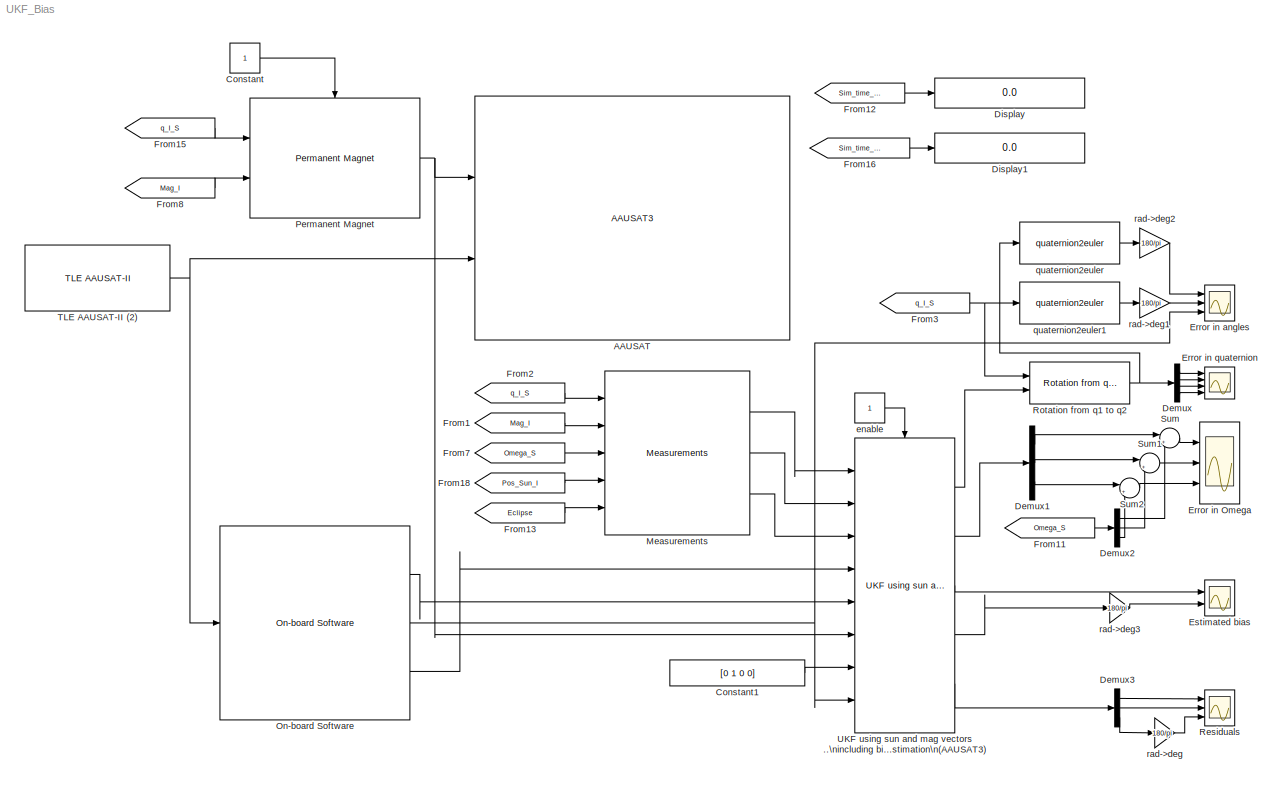
MODEL UKF_Bias
KIND model
BLOCK [Reference] AAUSAT  REF=aausat3_lib/AAUSAT3  (lib defined in mdl_4157f6465749, slx_d9305f96731e)
  Cd = 2
  Dim = [0.1,0.1,0.11]
  FunctionWithSeparateData = off
  Ports = [2]
  RTWMemSecDataConstants = Inherit from model
  RTWMemSecDataInternal = Inherit from model
  RTWMemSecDataParameters = Inherit from model
  RTWMemSecFuncExecute = Inherit from model
  RTWMemSecFuncInitTerm = Inherit from model
  SID = 875
  ShowPortLabels = none
  SourceBlock = aausat3_lib/AAUSAT3
  SystemSampleTime = -1
  Ts = 1
  enable_env_disturbance = on
  enable_sensor_emulation = on
  inertia_c = [0.0017466,0.0020972,0.0021268]
  init_jd = 2455153.1954318+0.035
  mass_sc = 0.957820
  q_init_I_S = [0 0 0 1]
  q_s_c = [-0.018775,0.71389,-0.0072618,0.69997]
  r_com_s = [0.049073,0.048909,0.041691]
  redfac = 1
  refldata = load('lib/AlbedoToolbox-1.0/refl_data/2005/ga050101-051231')
  rho = 5e-14
  sat_temp_start = 293.15
  solar_absorb_coeff = 1.5
  solar_m_flux = 4.5565e-6
  theta_e = 65
  w_init_s = [0.02,0.02,0.02]
BLOCK [Constant] Constant
  OutDataType = fixdt(1, 16)
  OutScaling = 2^0
  SID = 116
BLOCK [Constant] Constant1
  OutDataType = fixdt(1, 16)
  OutScaling = 2^0
  SID = 167
  Value = [0 1 0 0]
BLOCK [Demux] Demux
  DisplayOption = bar
  Ports = [1, 4]
  SID = 378
BLOCK [Demux] Demux1
  DisplayOption = bar
  Outputs = 3
  Ports = [1, 3]
  SID = 381
BLOCK [Demux] Demux2
  DisplayOption = bar
  Outputs = 3
  Ports = [1, 3]
  SID = 382
BLOCK [Demux] Demux3
  DisplayOption = bar
  Outputs = 3
  Ports = [1, 3]
  SID = 868
BLOCK [Display] Display
  Decimation = 1
  Format = long
  Lockdown = off
  Ports = [1]
  SID = 390
BLOCK [Display] Display1
  Decimation = 1
  Format = long
  Lockdown = off
  Ports = [1]
  SID = 415
BLOCK [Scope] Error in Omega
  DataFormat = StructureWithTime
  Floating = off
  LimitDataPoints = off
  NumInputPorts = 3
  Ports = [3]
  SID = 385
  SampleInput = on
  SampleTime = 1
  SaveName = ScopeData1
  TimeRange = 2000
  YMax = 0.0025~0.0045~0.003
  YMin = -0.004~-0.005~-0.0035
BLOCK [Scope] Error in angles
  DataFormat = StructureWithTime
  Floating = off
  LimitDataPoints = off
  NumInputPorts = 3
  Ports = [3]
  SID = 387
  SampleInput = on
  SampleTime = 1
  SaveName = ScopeData2
  TimeRange = 6000
  YMax = 12.5~200~1
  YMin = -7.5~-200~-1
BLOCK [Scope] Error in quaternion
  DataFormat = StructureWithTime
  Floating = off
  LimitDataPoints = off
  NumInputPorts = 4
  Ports = [4]
  SID = 377
  SampleInput = on
  SampleTime = 1
  TimeRange = 250
  YMax = 0.03~0.01~0.02~1.0001
  YMin = -0.02~-0.0175~-0.02~0.9995
  ZoomMode = yonly
BLOCK [Scope] Estimated bias
  DataFormat = StructureWithTime
  Floating = off
  LimitDataPoints = off
  NumInputPorts = 2
  Ports = [2]
  SID = 866
  SampleInput = on
  SampleTime = 1
  SaveName = ScopeData3
  TimeRange = 6000
  YMax = 5500~2.25
  YMin = -1500~-0.5
BLOCK [From] From1
  CloseFcn = tagdialog Close
  GotoTag = Mag_I
  SID = 120
  TagVisibility = global
BLOCK [From] From11
  CloseFcn = tagdialog Close
  GotoTag = Omega_S
  SID = 379
  TagVisibility = global
BLOCK [From] From12
  CloseFcn = tagdialog Close
  GotoTag = Sim_time_JD
  SID = 389
  TagVisibility = global
BLOCK [From] From13
  CloseFcn = tagdialog Close
  GotoTag = Eclipse
  SID = 399
  TagVisibility = global
BLOCK [From] From15
  CloseFcn = tagdialog Close
  GotoTag = q_I_S
  SID = 115
  TagVisibility = global
BLOCK [From] From16
  CloseFcn = tagdialog Close
  GotoTag = Sim_time_JD_sat
  SID = 416
  TagVisibility = global
BLOCK [From] From18
  CloseFcn = tagdialog Close
  GotoTag = Pos_Sun_I
  SID = 121
  TagVisibility = global
BLOCK [From] From2
  CloseFcn = tagdialog Close
  GotoTag = q_I_S
  SID = 123
  TagVisibility = global
BLOCK [From] From3
  CloseFcn = tagdialog Close
  GotoTag = q_I_S
  SID = 164
  TagVisibility = global
BLOCK [From] From7
  CloseFcn = tagdialog Close
  GotoTag = Omega_S
  SID = 122
  TagVisibility = global
BLOCK [From] From8
  CloseFcn = tagdialog Close
  GotoTag = Mag_I
  SID = 114
  TagVisibility = global
BLOCK [Reference] Measurements  REF=aausat3_lib/Sensor Emulation/Measurements  (lib defined in mdl_4157f6465749, slx_d9305f96731e)
  FunctionWithSeparateData = off
  Ports = [5, 3]
  RTWMemSecDataConstants = Inherit from model
  RTWMemSecDataInternal = Inherit from model
  RTWMemSecDataParameters = Inherit from model
  RTWMemSecFuncExecute = Inherit from model
  RTWMemSecFuncInitTerm = Inherit from model
  SID = 874
  ShowPortLabels = FromPortIcon
  SourceBlock = aausat3_lib/Sensor Emulation/Measurements
  SystemSampleTime = -1
  bias_gyro = [-0.2 -0.2 -0.2]
  bias_mag = [2000 4000 0]
  bias_sun = [0 0]
  heading_gyro = 1
  heading_mag = 1
  noise_gyro = 0.2
  noise_mag = 3
  noise_sun = 3.33
  nr_sample_sun = 1
  s_freq_gyro = 1
  s_freq_mag = 1
  s_freq_sun = 1
  tilt_gyro = 1
  tilt_mag = 1
BLOCK [Reference] On-board Software  REF=aausat3_lib/On-board Software  (lib defined in mdl_4157f6465749, slx_d9305f96731e)
  FunctionWithSeparateData = off
  Ports = [1, 3]
  RTWMemSecDataConstants = Inherit from model
  RTWMemSecDataInternal = Inherit from model
  RTWMemSecDataParameters = Inherit from model
  RTWMemSecFuncExecute = Inherit from model
  RTWMemSecFuncInitTerm = Inherit from model
  SID = 873
  ShowPortLabels = none
  SourceBlock = aausat3_lib/On-board Software
  SystemSampleTime = -1
  Ts = 1
  igrf_order = 8
  init_jd = 2455153.1954318+0.035
  theta_e = 65
BLOCK [Reference] Permanent Magnet  REF=aausat3_lib/Actuator Emulation/Permanent Magnet  (lib defined in mdl_4157f6465749, slx_d9305f96731e)
  FunctionWithSeparateData = off
  Ports = [2, 1, 1]
  RTWMemSecDataConstants = Inherit from model
  RTWMemSecDataInternal = Inherit from model
  RTWMemSecDataParameters = Inherit from model
  RTWMemSecFuncExecute = Inherit from model
  RTWMemSecFuncInitTerm = Inherit from model
  SID = 109
  ShowPortLabels = FromPortIcon
  SourceBlock = aausat3_lib/Actuator Emulation/Permanent Magnet
  SystemSampleTime = -1
  mag_moment = 0.0030
BLOCK [Scope] Residuals
  DataFormat = StructureWithTime
  Floating = off
  LimitDataPoints = off
  NumInputPorts = 3
  Ports = [3]
  SID = 867
  SampleInput = on
  SampleTime = 1
  SaveName = ScopeData4
  TimeRange = 6000
  YMax = 0.15~0.1~0.8
  YMin = -0.15~-0.15~-0.6
BLOCK [Reference] Rotation from q1 to q2  REF=aausat3_lib/Math Utilities/Quaternion operations/Rotation from q1 to q2  (lib defined in mdl_4157f6465749, slx_d9305f96731e)
  FunctionWithSeparateData = off
  Ports = [2, 1]
  RTWMemSecDataConstants = Inherit from model
  RTWMemSecDataInternal = Inherit from model
  RTWMemSecDataParameters = Inherit from model
  RTWMemSecFuncExecute = Inherit from model
  RTWMemSecFuncInitTerm = Inherit from model
  SID = 376
  ShowPortLabels = FromPortIcon
  SourceBlock = aausat3_lib/Math Utilities/Quaternion operations/Rotation from q1 to q2
  SourceType = SubSystem
  SystemSampleTime = -1
BLOCK [Sum] Sum
  IconShape = round
  InputSameDT = off
  Inputs = |+-
  OutDataType = fixdt(1, 16)
  OutDataTypeMode = Inherit via internal rule
  OutDataTypeStr = Inherit: Inherit via internal rule
  OutScaling = 2^0
  Ports = [2, 1]
  SID = 380
  SaturateOnIntegerOverflow = off
BLOCK [Sum] Sum1
  IconShape = round
  InputSameDT = off
  Inputs = |+-
  OutDataType = fixdt(1, 16)
  OutDataTypeMode = Inherit via internal rule
  OutDataTypeStr = Inherit: Inherit via internal rule
  OutScaling = 2^0
  Ports = [2, 1]
  SID = 383
  SaturateOnIntegerOverflow = off
BLOCK [Sum] Sum2
  IconShape = round
  InputSameDT = off
  Inputs = |+-
  OutDataType = fixdt(1, 16)
  OutDataTypeMode = Inherit via internal rule
  OutDataTypeStr = Inherit: Inherit via internal rule
  OutScaling = 2^0
  Ports = [2, 1]
  SID = 384
  SaturateOnIntegerOverflow = off
BLOCK [Reference] TLE AAUSAT-II (2)  REF=aausat3_lib/Orbit and Ephemeris/TLE AAUSAT-II  (lib defined in mdl_4157f6465749, slx_d9305f96731e)
  FunctionWithSeparateData = off
  JulianDay = 09321.69542252
  Ports = [0, 1]
  RTWMemSecDataConstants = Inherit from model
  RTWMemSecDataInternal = Inherit from model
  RTWMemSecDataParameters = Inherit from model
  RTWMemSecFuncExecute = Inherit from model
  RTWMemSecFuncInitTerm = Inherit from model
  SID = 110
  ShowPortLabels = FromPortIcon
  SourceBlock = aausat3_lib/Orbit and Ephemeris/TLE AAUSAT-II
  SystemSampleTime = -1
  bstar = .76898e-4
  eo = 0.0014245
  omegao = 254.1774
  satname = 'AAUSAT-II'
  ts = 1
  xincl = 97.9251
  xmo = 105.7862
  xndd6o = 0.0
  xndt2o = 0.00000555
  xno = 14.81823818
  xnodeo = 24.1597
BLOCK [Reference] UKF using sun and mag vectors ..\nincluding bias estimation\n(AAUSAT3)  REF=aausat3_lib/ADS/UKF using sun and mag vectors ..\nincluding bias estimation\n(AAUSAT3)  (lib defined in mdl_4157f6465749, slx_d9305f96731e)
  FunctionWithSeparateData = off
  Ports = [8, 5, 1]
  RTWMemSecDataConstants = Inherit from model
  RTWMemSecDataInternal = Inherit from model
  RTWMemSecDataParameters = Inherit from model
  RTWMemSecFuncExecute = Inherit from model
  RTWMemSecFuncInitTerm = Inherit from model
  SID = 865
  ShowPortLabels = FromPortIcon
  SourceBlock = aausat3_lib/ADS/UKF using sun and mag vectors ..\nincluding bias estimation\n(AAUSAT3)
  SystemSampleTime = -1
  f_sample = 1
BLOCK [Constant] enable
  OutDataType = fixdt(1, 16)
  OutScaling = 2^0
  SID = 876
BLOCK [Reference] quaternion2euler  REF=aausat3_lib/Math Utilities/Quaternion operations/quaternion2euler  (lib defined in mdl_4157f6465749, slx_d9305f96731e)
  FunctionWithSeparateData = off
  Ports = [1, 1]
  RTWMemSecDataConstants = Inherit from model
  RTWMemSecDataInternal = Inherit from model
  RTWMemSecDataParameters = Inherit from model
  RTWMemSecFuncExecute = Inherit from model
  RTWMemSecFuncInitTerm = Inherit from model
  SID = 386
  ShowPortLabels = FromPortIcon
  SourceBlock = aausat3_lib/Math Utilities/Quaternion operations/quaternion2euler
  SourceType = SubSystem
  SystemSampleTime = -1
BLOCK [Reference] quaternion2euler1  REF=aausat3_lib/Math Utilities/Quaternion operations/quaternion2euler  (lib defined in mdl_4157f6465749, slx_d9305f96731e)
  FunctionWithSeparateData = off
  Ports = [1, 1]
  RTWMemSecDataConstants = Inherit from model
  RTWMemSecDataInternal = Inherit from model
  RTWMemSecDataParameters = Inherit from model
  RTWMemSecFuncExecute = Inherit from model
  RTWMemSecFuncInitTerm = Inherit from model
  SID = 446
  ShowPortLabels = FromPortIcon
  SourceBlock = aausat3_lib/Math Utilities/Quaternion operations/quaternion2euler
  SourceType = SubSystem
  SystemSampleTime = -1
BLOCK [Gain] rad->deg
  Gain = 180/pi
  OutDataType = fixdt(1, 16)
  OutDataTypeMode = Inherit via internal rule
  OutDataTypeStr = Inherit: Inherit via internal rule
  OutScaling = 2^0
  ParamDataTypeStr = Inherit: Inherit via internal rule
  ParameterDataType = fixdt(1, 16)
  ParameterDataTypeMode = Inherit via internal rule
  ParameterScaling = 2^0
  SID = 869
  SaturateOnIntegerOverflow = off
BLOCK [Gain] rad->deg1
  Gain = 180/pi
  OutDataType = fixdt(1, 16)
  OutDataTypeMode = Inherit via internal rule
  OutDataTypeStr = Inherit: Inherit via internal rule
  OutScaling = 2^0
  ParamDataTypeStr = Inherit: Inherit via internal rule
  ParameterDataType = fixdt(1, 16)
  ParameterDataTypeMode = Inherit via internal rule
  ParameterScaling = 2^0
  SID = 445
  SaturateOnIntegerOverflow = off
BLOCK [Gain] rad->deg2
  Gain = 180/pi
  OutDataType = fixdt(1, 16)
  OutDataTypeMode = Inherit via internal rule
  OutDataTypeStr = Inherit: Inherit via internal rule
  OutScaling = 2^0
  ParamDataTypeStr = Inherit: Inherit via internal rule
  ParameterDataType = fixdt(1, 16)
  ParameterDataTypeMode = Inherit via internal rule
  ParameterScaling = 2^0
  SID = 398
  SaturateOnIntegerOverflow = off
BLOCK [Gain] rad->deg3
  Gain = 180/pi
  OutDataType = fixdt(1, 16)
  OutDataTypeMode = Inherit via internal rule
  OutDataTypeStr = Inherit: Inherit via internal rule
  OutScaling = 2^0
  ParamDataTypeStr = Inherit: Inherit via internal rule
  ParameterDataType = fixdt(1, 16)
  ParameterDataTypeMode = Inherit via internal rule
  ParameterScaling = 2^0
  SID = 870
  SaturateOnIntegerOverflow = off
LINE Constant1:1 -> UKF using sun and mag vectors ..\nincluding bias estimation\n(AAUSAT3):7
LINE Constant:1 -> Permanent Magnet:enable
LINE Demux1:1 -> Sum:1
LINE Demux1:2 -> Sum1:1
LINE Demux1:3 -> Sum2:1
LINE Demux2:1 -> Sum:2
LINE Demux2:2 -> Sum1:2
LINE Demux2:3 -> Sum2:2
LINE Demux3:1 -> Residuals:1
LINE Demux3:2 -> Residuals:2
LINE Demux3:3 -> rad->deg:1
LINE Demux:1 -> Error in quaternion:1
LINE Demux:2 -> Error in quaternion:2
LINE Demux:3 -> Error in quaternion:3
LINE Demux:4 -> Error in quaternion:4
LINE From11:1 -> Demux2:1
LINE From12:1 -> Display:1
LINE From13:1 -> Measurements:5
LINE From15:1 -> Permanent Magnet:1
LINE From16:1 -> Display1:1
LINE From18:1 -> Measurements:4
LINE From1:1 -> Measurements:2
LINE From2:1 -> Measurements:1
NET From3:1 -> Rotation from q1 to q2:1, quaternion2euler1:1
LINE From7:1 -> Measurements:3
LINE From8:1 -> Permanent Magnet:2
LINE Measurements:1 -> UKF using sun and mag vectors ..\nincluding bias estimation\n(AAUSAT3):1
LINE Measurements:2 -> UKF using sun and mag vectors ..\nincluding bias estimation\n(AAUSAT3):2
LINE Measurements:3 -> UKF using sun and mag vectors ..\nincluding bias estimation\n(AAUSAT3):3
LINE On-board Software:1 -> UKF using sun and mag vectors ..\nincluding bias estimation\n(AAUSAT3):5
NET On-board Software:2 -> Error in angles:3, UKF using sun and mag vectors ..\nincluding bias estimation\n(AAUSAT3):8
LINE On-board Software:3 -> UKF using sun and mag vectors ..\nincluding bias estimation\n(AAUSAT3):4
NET Permanent Magnet:1 -> AAUSAT:1, UKF using sun and mag vectors ..\nincluding bias estimation\n(AAUSAT3):6
NET Rotation from q1 to q2:1 -> Demux:1, quaternion2euler:1
LINE Sum1:1 -> Error in Omega:2
LINE Sum2:1 -> Error in Omega:3
LINE Sum:1 -> Error in Omega:1
NET TLE AAUSAT-II (2):1 -> AAUSAT:2, On-board Software:1
LINE UKF using sun and mag vectors ..\nincluding bias estimation\n(AAUSAT3):1 -> Rotation from q1 to q2:2
LINE UKF using sun and mag vectors ..\nincluding bias estimation\n(AAUSAT3):2 -> Demux1:1
LINE UKF using sun and mag vectors ..\nincluding bias estimation\n(AAUSAT3):3 -> Estimated bias:1
LINE UKF using sun and mag vectors ..\nincluding bias estimation\n(AAUSAT3):4 -> rad->deg3:1
LINE UKF using sun and mag vectors ..\nincluding bias estimation\n(AAUSAT3):5 -> Demux3:1
LINE enable:1 -> UKF using sun and mag vectors ..\nincluding bias estimation\n(AAUSAT3):enable
LINE quaternion2euler1:1 -> rad->deg1:1
LINE quaternion2euler:1 -> rad->deg2:1
LINE rad->deg1:1 -> Error in angles:2
LINE rad->deg2:1 -> Error in angles:1
LINE rad->deg3:1 -> Estimated bias:2
LINE rad->deg:1 -> Residuals:3
note: NET lines group one-source signal fan-out (src -> all destinations, sorted); 1:1 wires keep LINE
